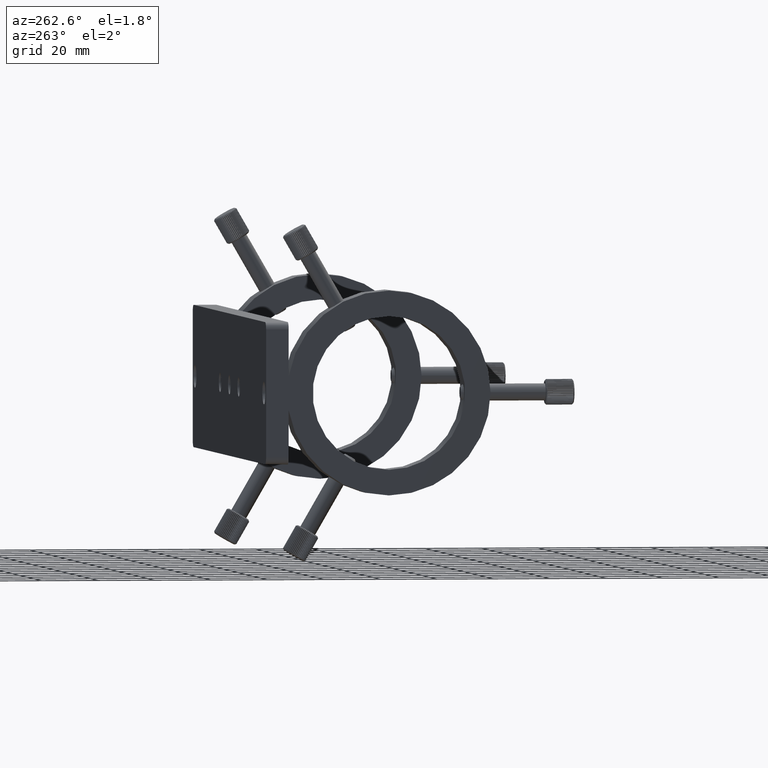
[diagram: clean part render]
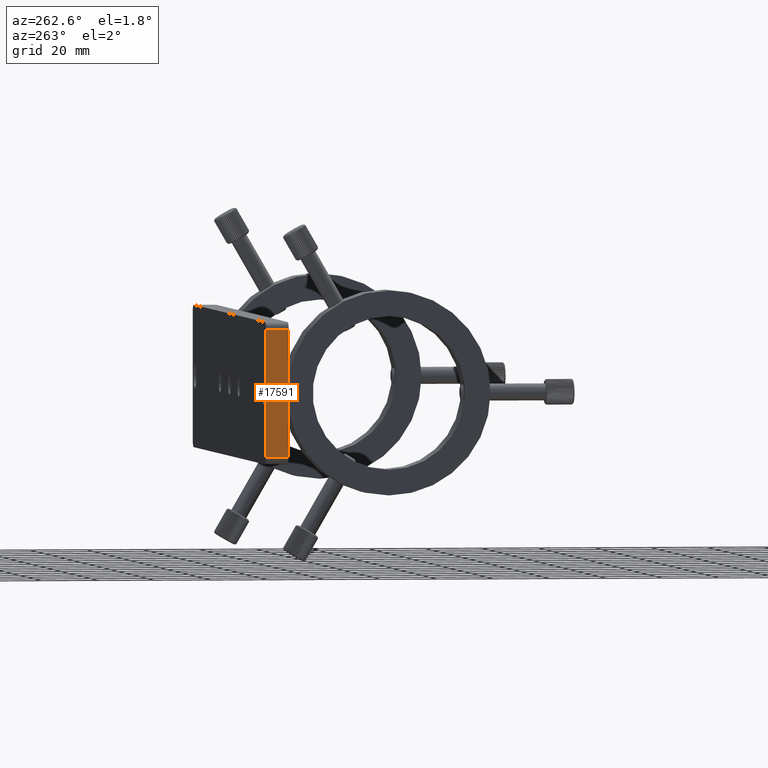
[diagram: same view with one face highlighted and labeled with its STEP entity id]
A machine part, auxiliary view. The second image highlights one B-rep face of the part: STEP entity #17591.
In plain terms, the highlighted planar face has unit normal (1, -0, 0).
Its self-contained STEP definition (entity closure, byte-faithful):
#782 = CARTESIAN_POINT ( 'NONE',  ( -103.6330608537693600, -17.41295791704509100, -22.50000000000000400 ) ) ;
#1172 = AXIS2_PLACEMENT_3D ( 'NONE', #7301, #1849, #27200 ) ;
#1261 = ORIENTED_EDGE ( 'NONE', *, *, #30968, .T. ) ;
#1849 = DIRECTION ( 'NONE',  ( 1.000000000000000000, -1.438252834678955300E-032, 5.551115123125781500E-017 ) ) ;
#4525 = VECTOR ( 'NONE', #9157, 1000.000000000000000 ) ;
#4747 = PLANE ( 'NONE',  #1172 ) ;
#4822 = VERTEX_POINT ( 'NONE', #25594 ) ;
#5489 = DIRECTION ( 'NONE',  ( 1.438252834678956100E-032, 1.000000000000000000, -3.212344377754002500E-032 ) ) ;
#5896 = CARTESIAN_POINT ( 'NONE',  ( -103.6330608537693600, -17.41295791704509100, -22.50000000000000400 ) ) ;
#7301 = CARTESIAN_POINT ( 'NONE',  ( -103.6330608537693600, -17.41295791704509100, -22.50000000000000400 ) ) ;
#8933 = DIRECTION ( 'NONE',  ( 5.551115123125782100E-017, -3.212344377754001400E-032, -1.000000000000000000 ) ) ;
#9157 = DIRECTION ( 'NONE',  ( 5.551115123125782100E-017, -3.212344377754001400E-032, -1.000000000000000000 ) ) ;
#9679 = CARTESIAN_POINT ( 'NONE',  ( -103.6330608537693600, -9.412957917045092800, -22.50000000000000400 ) ) ;
#10931 = VECTOR ( 'NONE', #8933, 1000.000000000000000 ) ;
#11317 = LINE ( 'NONE', #782, #4525 ) ;
#11318 = FACE_OUTER_BOUND ( 'NONE', #30235, .T. ) ;
#11515 = EDGE_CURVE ( 'NONE', #4822, #29402, #13384, .T. ) ;
#12089 = LINE ( 'NONE', #5896, #30750 ) ;
#13384 = LINE ( 'NONE', #22812, #21342 ) ;
#14008 = DIRECTION ( 'NONE',  ( 1.438252834678956100E-032, 1.000000000000000000, -3.212344377754002500E-032 ) ) ;
#14090 = CARTESIAN_POINT ( 'NONE',  ( -103.6330608537693600, -9.412957917045092800, 22.50000000000000400 ) ) ;
#17591 = ADVANCED_FACE ( 'NONE', ( #11318 ), #4747, .F. ) ;
#21342 = VECTOR ( 'NONE', #5489, 1000.000000000000000 ) ;
#21953 = ORIENTED_EDGE ( 'NONE', *, *, #11515, .T. ) ;
#22004 = LINE ( 'NONE', #24936, #10931 ) ;
#22050 = VERTEX_POINT ( 'NONE', #26382 ) ;
#22812 = CARTESIAN_POINT ( 'NONE',  ( -103.6330608537693600, -17.41295791704509100, 22.50000000000000400 ) ) ;
#24936 = CARTESIAN_POINT ( 'NONE',  ( -103.6330608537693600, -9.412957917045092800, -22.50000000000000400 ) ) ;
#25594 = CARTESIAN_POINT ( 'NONE',  ( -103.6330608537693600, -17.41295791704509100, 22.50000000000000400 ) ) ;
#26382 = CARTESIAN_POINT ( 'NONE',  ( -103.6330608537693600, -17.41295791704509100, -22.50000000000000400 ) ) ;
#27200 = DIRECTION ( 'NONE',  ( -5.551115123125781500E-017, 3.212344377754001400E-032, 1.000000000000000000 ) ) ;
#28924 = VERTEX_POINT ( 'NONE', #9679 ) ;
#29402 = VERTEX_POINT ( 'NONE', #14090 ) ;
#30176 = ORIENTED_EDGE ( 'NONE', *, *, #32082, .F. ) ;
#30235 = EDGE_LOOP ( 'NONE', ( #1261, #30176, #31913, #21953 ) ) ;
#30750 = VECTOR ( 'NONE', #14008, 1000.000000000000000 ) ;
#30924 = EDGE_CURVE ( 'NONE', #4822, #22050, #11317, .T. ) ;
#30968 = EDGE_CURVE ( 'NONE', #29402, #28924, #22004, .T. ) ;
#31913 = ORIENTED_EDGE ( 'NONE', *, *, #30924, .F. ) ;
#32082 = EDGE_CURVE ( 'NONE', #22050, #28924, #12089, .T. ) ;